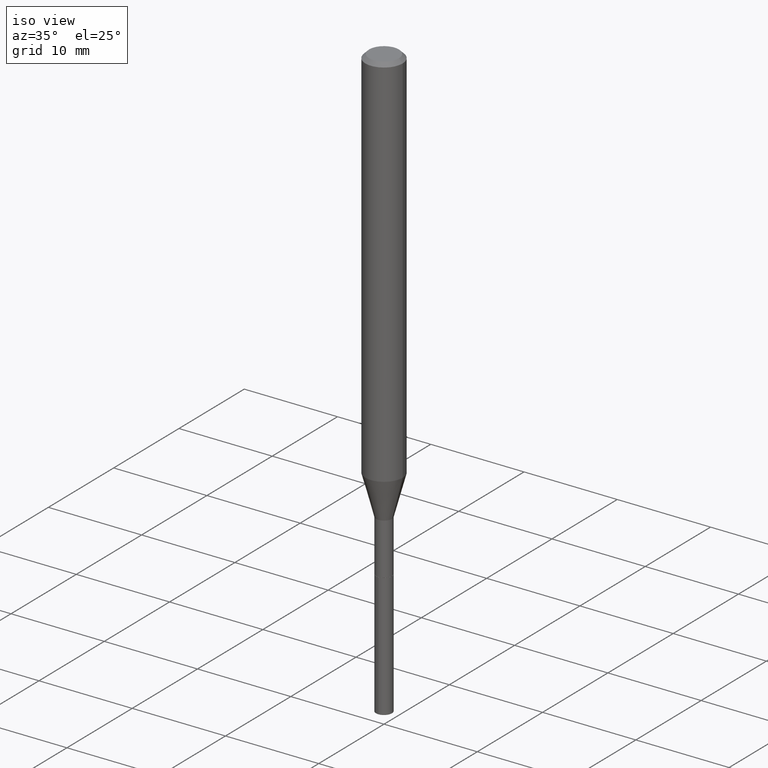
[diagram: clean part render]
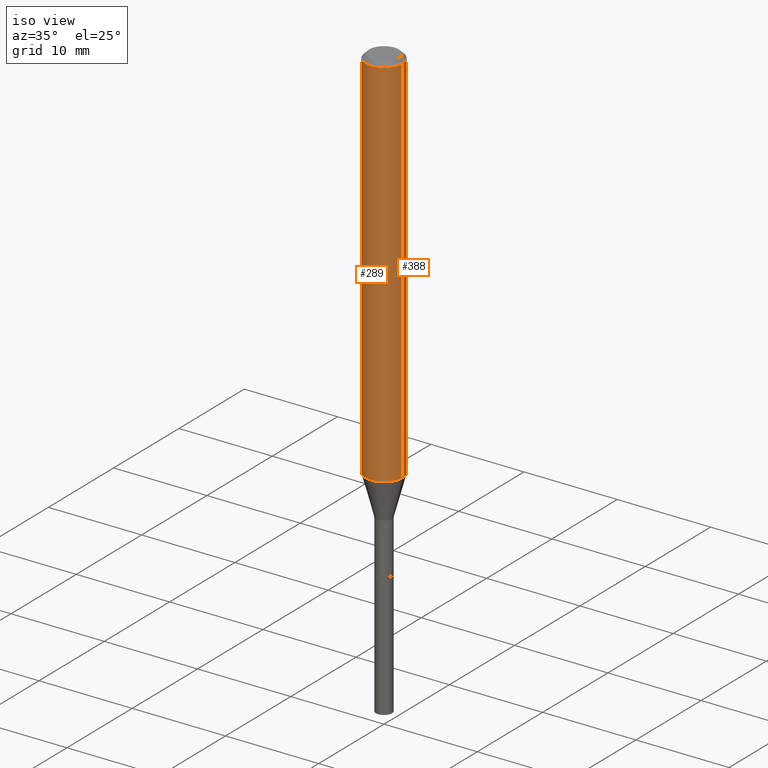
[diagram: same view with one multi-face feature highlighted, each face labeled with its STEP entity id]
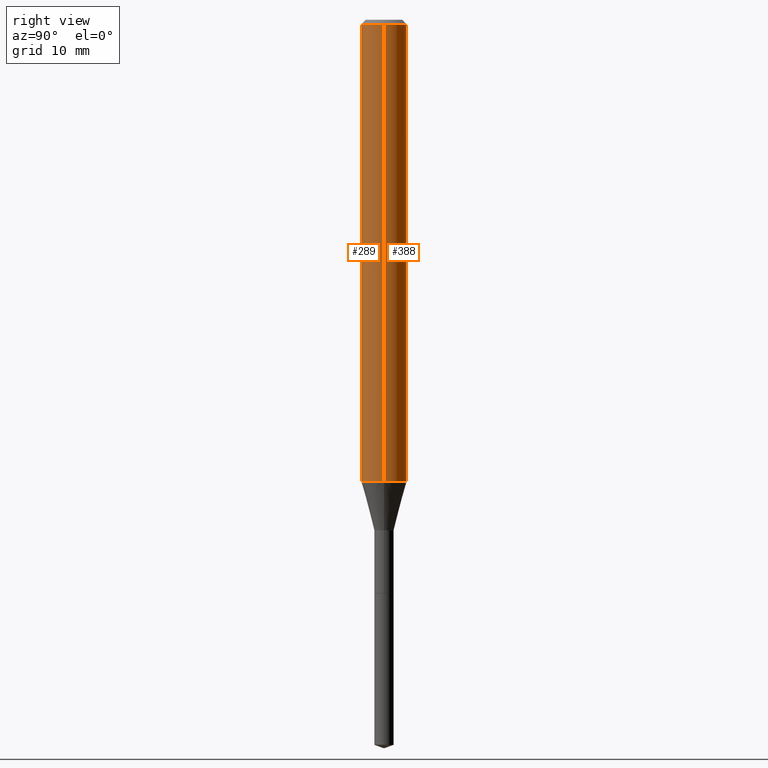
[diagram: same view with one multi-face feature highlighted, each face labeled with its STEP entity id]
A machine part, iso view. The highlighted faces form ONE feature: a constant-radius fillet chain: 2 tangent blend faces with common blend radius 2.0003 mm. The faces share edges in the B-rep.
A second angle (right view) of the same feature is appended — it is thin or edge-on in the first view.
Their STEP definitions:
[1] entity #388 (Cylinder):
#1 = AXIS2_PLACEMENT_3D ( 'NONE', #441, #94, #180 ) ;
#18 = FACE_OUTER_BOUND ( 'NONE', #172, .T. ) ;
#21 = VERTEX_POINT ( 'NONE', #375 ) ;
#48 = CIRCLE ( 'NONE', #216, 0.07875000000000019484 ) ;
#53 = CARTESIAN_POINT ( 'NONE',  ( 3.904284117565225006E-29, -5.574282977375527399E-15, -1.596538098417129126 ) ) ;
#61 = CYLINDRICAL_SURFACE ( 'NONE', #1, 0.07875000000000009770 ) ;
#94 = DIRECTION ( 'NONE',  ( -2.445468806185136597E-29, 3.491481338843145583E-15, 1.000000000000000000 ) ) ;
#98 = CARTESIAN_POINT ( 'NONE',  ( 3.851613369741614799E-31, -5.499083108677989540E-17, -0.01575000000000010072 ) ) ;
#100 = CARTESIAN_POINT ( 'NONE',  ( 0.07875000000000000056, -6.048991419545733705E-16, -0.01575000000000010072 ) ) ;
#118 = LINE ( 'NONE', #204, #312 ) ;
#137 = EDGE_CURVE ( 'NONE', #21, #273, #118, .T. ) ;
#161 = CIRCLE ( 'NONE', #380, 0.07875000000000000056 ) ;
#172 = EDGE_LOOP ( 'NONE', ( #415, #330, #283, #255 ) ) ;
#176 = VERTEX_POINT ( 'NONE', #352 ) ;
#180 = DIRECTION ( 'NONE',  ( 1.000000000000000000, -6.982962677686267499E-15, 4.876176775795935232E-29 ) ) ;
#204 = CARTESIAN_POINT ( 'NONE',  ( -0.07875000000000009770, 5.595524044110795906E-16, -3.873661383575743397E-30 ) ) ;
#216 = AXIS2_PLACEMENT_3D ( 'NONE', #53, #360, #402 ) ;
#217 = CARTESIAN_POINT ( 'NONE',  ( 0.07875000000000009770, -5.499083108677942332E-16, 3.839989210939303921E-30 ) ) ;
#246 = CARTESIAN_POINT ( 'NONE',  ( -0.07875000000000000056, -2.255084499820072593E-15, -0.01575000000000010072 ) ) ;
#254 = DIRECTION ( 'NONE',  ( -2.445468806185136597E-29, 3.491481338843145583E-15, 1.000000000000000000 ) ) ;
#255 = ORIENTED_EDGE ( 'NONE', *, *, #356, .F. ) ;
#256 = DIRECTION ( 'NONE',  ( -2.445468806185136877E-29, 3.491481338843145188E-15, 1.000000000000000000 ) ) ;
#270 = DIRECTION ( 'NONE',  ( -2.445468806185136877E-29, 3.491481338843145188E-15, 1.000000000000000000 ) ) ;
#273 = VERTEX_POINT ( 'NONE', #246 ) ;
#283 = ORIENTED_EDGE ( 'NONE', *, *, #351, .F. ) ;
#312 = VECTOR ( 'NONE', #270, 39.37007874015748143 ) ;
#330 = ORIENTED_EDGE ( 'NONE', *, *, #137, .T. ) ;
#332 = VERTEX_POINT ( 'NONE', #100 ) ;
#351 = EDGE_CURVE ( 'NONE', #332, #273, #161, .T. ) ;
#352 = CARTESIAN_POINT ( 'NONE',  ( 0.07875000000000019484, -6.124191288243322322E-15, -1.596538098417129126 ) ) ;
#356 = EDGE_CURVE ( 'NONE', #176, #332, #430, .T. ) ;
#360 = DIRECTION ( 'NONE',  ( -2.445468806185136597E-29, 3.491481338843145583E-15, 1.000000000000000000 ) ) ;
#365 = EDGE_CURVE ( 'NONE', #176, #21, #48, .T. ) ;
#368 = DIRECTION ( 'NONE',  ( 1.000000000000000000, -6.982962677686265922E-15, 0.000000000000000000 ) ) ;
#373 = VECTOR ( 'NONE', #256, 39.37007874015748143 ) ;
#375 = CARTESIAN_POINT ( 'NONE',  ( -0.07875000000000019484, -5.014730572964447019E-15, -1.596538098417129126 ) ) ;
#380 = AXIS2_PLACEMENT_3D ( 'NONE', #98, #254, #368 ) ;
#388 = ADVANCED_FACE ( 'NONE', ( #18 ), #61, .T. ) ;
#402 = DIRECTION ( 'NONE',  ( 1.000000000000000000, -6.982962677686269077E-15, 0.000000000000000000 ) ) ;
#415 = ORIENTED_EDGE ( 'NONE', *, *, #365, .T. ) ;
#430 = LINE ( 'NONE', #217, #373 ) ;
#441 = CARTESIAN_POINT ( 'NONE',  ( 0.000000000000000000, 0.000000000000000000, 0.000000000000000000 ) ) ;
[2] entity #289 (Cylinder):
#2 = DIRECTION ( 'NONE',  ( 1.000000000000000000, -6.982962677686269077E-15, 0.000000000000000000 ) ) ;
#14 = DIRECTION ( 'NONE',  ( -2.445468806185136597E-29, 3.491481338843145583E-15, 1.000000000000000000 ) ) ;
#20 = CYLINDRICAL_SURFACE ( 'NONE', #183, 0.07875000000000009770 ) ;
#21 = VERTEX_POINT ( 'NONE', #375 ) ;
#26 = ORIENTED_EDGE ( 'NONE', *, *, #474, .F. ) ;
#68 = DIRECTION ( 'NONE',  ( 1.000000000000000000, -6.982962677686265922E-15, 0.000000000000000000 ) ) ;
#71 = CARTESIAN_POINT ( 'NONE',  ( 3.851613369741614799E-31, -5.499083108677989540E-17, -0.01575000000000010072 ) ) ;
#93 = EDGE_LOOP ( 'NONE', ( #450, #327, #364, #26 ) ) ;
#100 = CARTESIAN_POINT ( 'NONE',  ( 0.07875000000000000056, -6.048991419545733705E-16, -0.01575000000000010072 ) ) ;
#118 = LINE ( 'NONE', #204, #312 ) ;
#130 = CARTESIAN_POINT ( 'NONE',  ( 3.904284117565225006E-29, -5.574282977375527399E-15, -1.596538098417129126 ) ) ;
#137 = EDGE_CURVE ( 'NONE', #21, #273, #118, .T. ) ;
#138 = CARTESIAN_POINT ( 'NONE',  ( 0.000000000000000000, 0.000000000000000000, 0.000000000000000000 ) ) ;
#169 = DIRECTION ( 'NONE',  ( -2.445468806185136597E-29, 3.491481338843145583E-15, 1.000000000000000000 ) ) ;
#176 = VERTEX_POINT ( 'NONE', #352 ) ;
#183 = AXIS2_PLACEMENT_3D ( 'NONE', #138, #14, #211 ) ;
#204 = CARTESIAN_POINT ( 'NONE',  ( -0.07875000000000009770, 5.595524044110795906E-16, -3.873661383575743397E-30 ) ) ;
#211 = DIRECTION ( 'NONE',  ( 1.000000000000000000, -6.982962677686267499E-15, 4.876176775795935232E-29 ) ) ;
#217 = CARTESIAN_POINT ( 'NONE',  ( 0.07875000000000009770, -5.499083108677942332E-16, 3.839989210939303921E-30 ) ) ;
#245 = CIRCLE ( 'NONE', #410, 0.07875000000000000056 ) ;
#246 = CARTESIAN_POINT ( 'NONE',  ( -0.07875000000000000056, -2.255084499820072593E-15, -0.01575000000000010072 ) ) ;
#252 = EDGE_CURVE ( 'NONE', #21, #176, #456, .T. ) ;
#256 = DIRECTION ( 'NONE',  ( -2.445468806185136877E-29, 3.491481338843145188E-15, 1.000000000000000000 ) ) ;
#268 = AXIS2_PLACEMENT_3D ( 'NONE', #130, #169, #2 ) ;
#270 = DIRECTION ( 'NONE',  ( -2.445468806185136877E-29, 3.491481338843145188E-15, 1.000000000000000000 ) ) ;
#273 = VERTEX_POINT ( 'NONE', #246 ) ;
#289 = ADVANCED_FACE ( 'NONE', ( #434 ), #20, .T. ) ;
#312 = VECTOR ( 'NONE', #270, 39.37007874015748143 ) ;
#327 = ORIENTED_EDGE ( 'NONE', *, *, #252, .T. ) ;
#332 = VERTEX_POINT ( 'NONE', #100 ) ;
#337 = DIRECTION ( 'NONE',  ( -2.445468806185136597E-29, 3.491481338843145583E-15, 1.000000000000000000 ) ) ;
#352 = CARTESIAN_POINT ( 'NONE',  ( 0.07875000000000019484, -6.124191288243322322E-15, -1.596538098417129126 ) ) ;
#356 = EDGE_CURVE ( 'NONE', #176, #332, #430, .T. ) ;
#364 = ORIENTED_EDGE ( 'NONE', *, *, #356, .T. ) ;
#373 = VECTOR ( 'NONE', #256, 39.37007874015748143 ) ;
#375 = CARTESIAN_POINT ( 'NONE',  ( -0.07875000000000019484, -5.014730572964447019E-15, -1.596538098417129126 ) ) ;
#410 = AXIS2_PLACEMENT_3D ( 'NONE', #71, #337, #68 ) ;
#430 = LINE ( 'NONE', #217, #373 ) ;
#434 = FACE_OUTER_BOUND ( 'NONE', #93, .T. ) ;
#450 = ORIENTED_EDGE ( 'NONE', *, *, #137, .F. ) ;
#456 = CIRCLE ( 'NONE', #268, 0.07875000000000019484 ) ;
#474 = EDGE_CURVE ( 'NONE', #273, #332, #245, .T. ) ;